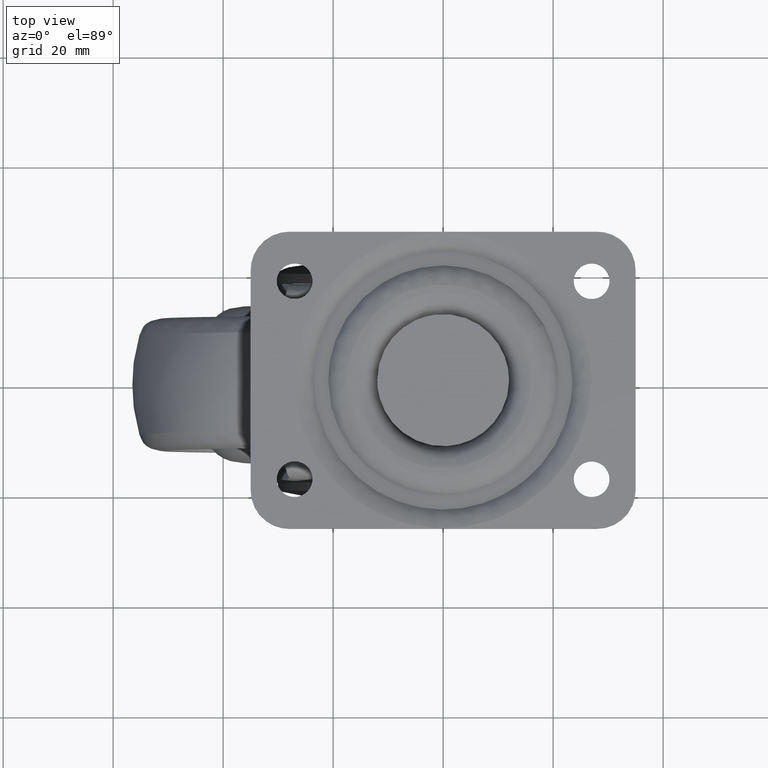
[diagram: clean part render]
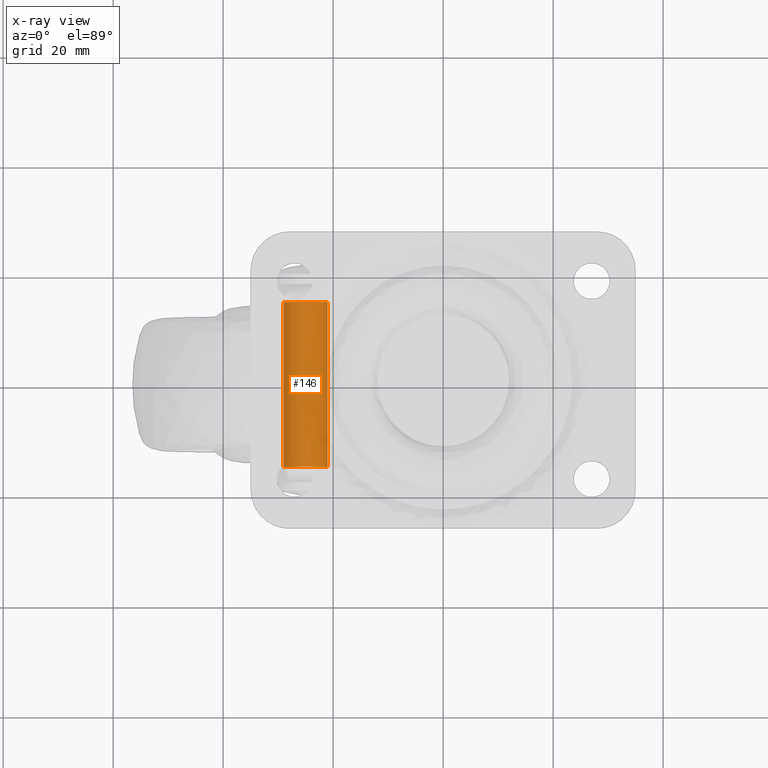
[diagram: x-ray — body ghosted, one internal face saturated and labeled with its STEP entity id]
A machine part, top view, then the same camera in x-ray: the body is ghosted and one INTERNAL B-rep face — a face not visible from any outside direction — is saturated and labeled: STEP entity #146.
In plain terms, the highlighted face is a freeform B-spline surface patch.
Its self-contained STEP definition (entity closure, byte-faithful):
#44=CARTESIAN_POINT('',(-21.027961894545335,15.750000000000005,-48.972054938627046));
#45=CARTESIAN_POINT('',(-21.014449538205575,15.750000000000007,-48.858376914551911));
#46=CARTESIAN_POINT('',(-21.007460806312530,15.750000000000000,-48.744112158139430));
#47=CARTESIAN_POINT('',(-20.763266648173104,15.750000000000009,-44.751572964451960));
#48=CARTESIAN_POINT('',(-24.755805841860571,15.750000000000000,-44.507378806312531));
#49=CARTESIAN_POINT('',(-28.748345035548041,15.750000000000009,-44.263184648173116));
#50=CARTESIAN_POINT('',(-28.992539193687470,15.750000000000000,-48.255723841860572));
#51=CARTESIAN_POINT('',(-21.027961894545335,-15.768750000000006,-48.972054938627046));
#52=CARTESIAN_POINT('',(-21.014449538205575,-15.768750000000006,-48.858376914551911));
#53=CARTESIAN_POINT('',(-21.007460806312530,-15.768750000000001,-48.744112158139430));
#54=CARTESIAN_POINT('',(-20.763266648173104,-15.768749999999997,-44.751572964451960));
#55=CARTESIAN_POINT('',(-24.755805841860571,-15.768750000000001,-44.507378806312531));
#56=CARTESIAN_POINT('',(-28.748345035548041,-15.768749999999997,-44.263184648173116));
#57=CARTESIAN_POINT('',(-28.992539193687470,-15.768750000000001,-48.255723841860572));
#65=(BOUNDED_SURFACE()B_SPLINE_SURFACE(2,1,((#44,#51),(#45,#52),(#46,#53),(#47,#54),(#48,#55),(#49,#56),(#50,#57)),.UNSPECIFIED.,.F.,.F.,.U.)B_SPLINE_SURFACE_WITH_KNOTS((3,2,2,3),(2,2),(0.0,0.265096679918781,6.892513677888307,13.519930675857831),(0.0,31.518750000000011),.UNSPECIFIED.)GEOMETRIC_REPRESENTATION_ITEM()RATIONAL_B_SPLINE_SURFACE(((0.977505800795127,0.977505800795127),(0.988284271247462,0.988284271247462),(1.0,1.0),(0.707106781186548,0.707106781186548),(1.0,1.0),(0.707106781186548,0.707106781186548),(1.0,1.0)))REPRESENTATION_ITEM('')SURFACE());
#66=CARTESIAN_POINT('',(-21.027961894573011,-15.0,-48.972054938859863));
#67=VERTEX_POINT('',#66);
#68=CARTESIAN_POINT('',(-25.0,-15.0,-44.499918000000001));
#69=VERTEX_POINT('',#68);
#70=CARTESIAN_POINT('',(-21.027961894573007,-14.999999999999995,-48.972054938859863));
#71=CARTESIAN_POINT('',(-21.0,-15.000000000000005,-48.736814478842923));
#72=CARTESIAN_POINT('',(-21.0,-15.0,-48.499918000000001));
#73=CARTESIAN_POINT('',(-21.000000000000004,-14.999999999999995,-44.499918000000001));
#74=CARTESIAN_POINT('',(-25.0,-15.0,-44.499918000000001));
#82=(BOUNDED_CURVE()B_SPLINE_CURVE(2,(#70,#71,#72,#73,#74),.UNSPECIFIED.,.F.,.U.)B_SPLINE_CURVE_WITH_KNOTS((3,2,3),(0.229562473495832,0.250000000000000,0.500000000000000),.UNSPECIFIED.)CURVE()GEOMETRIC_REPRESENTATION_ITEM()RATIONAL_B_SPLINE_CURVE((0.956026754149052,0.976055948310436,1.0,0.707106781186548,1.0))REPRESENTATION_ITEM(''));
#83=EDGE_CURVE('',#67,#69,#82,.T.);
#84=ORIENTED_EDGE('',*,*,#83,.T.);
#85=CARTESIAN_POINT('',(-28.992539193671892,-15.0,-48.255723841605871));
#86=VERTEX_POINT('',#85);
#87=CARTESIAN_POINT('',(-25.0,-15.0,-44.499918000000001));
#88=CARTESIAN_POINT('',(-28.762824267141802,-14.999999999999996,-44.499918000000001));
#89=CARTESIAN_POINT('',(-28.992539193671895,-15.0,-48.255723841605878));
#97=(BOUNDED_CURVE()B_SPLINE_CURVE(2,(#87,#88,#89),.UNSPECIFIED.,.F.,.U.)B_SPLINE_CURVE_WITH_KNOTS((3,3),(0.500000000000000,0.739332962219954),.UNSPECIFIED.)CURVE()GEOMETRIC_REPRESENTATION_ITEM()RATIONAL_B_SPLINE_CURVE((1.0,0.719603993308958,0.976072041626020))REPRESENTATION_ITEM(''));
#98=EDGE_CURVE('',#69,#86,#97,.T.);
#99=ORIENTED_EDGE('',*,*,#98,.T.);
#100=CARTESIAN_POINT('',(-28.992539193671892,15.0,-48.255723841605871));
#101=VERTEX_POINT('',#100);
#102=CARTESIAN_POINT('',(-28.992539193671892,15.0,-48.255723841605871));
#103=CARTESIAN_POINT('',(-28.992539193671892,-15.0,-48.255723841605871));
#104=QUASI_UNIFORM_CURVE('',1,(#102,#103),.UNSPECIFIED.,.F.,.U.);
#105=EDGE_CURVE('',#101,#86,#104,.T.);
#106=ORIENTED_EDGE('',*,*,#105,.F.);
#107=CARTESIAN_POINT('',(-25.0,15.0,-44.499918000000001));
#108=VERTEX_POINT('',#107);
#109=CARTESIAN_POINT('',(-25.0,15.0,-44.499918000000001));
#110=CARTESIAN_POINT('',(-28.762824267141802,14.999999999999996,-44.499918000000001));
#111=CARTESIAN_POINT('',(-28.992539193671895,15.0,-48.255723841605878));
#119=(BOUNDED_CURVE()B_SPLINE_CURVE(2,(#109,#110,#111),.UNSPECIFIED.,.F.,.U.)B_SPLINE_CURVE_WITH_KNOTS((3,3),(0.500000000000000,0.739332962219954),.UNSPECIFIED.)CURVE()GEOMETRIC_REPRESENTATION_ITEM()RATIONAL_B_SPLINE_CURVE((1.0,0.719603993308958,0.976072041626020))REPRESENTATION_ITEM(''));
#120=EDGE_CURVE('',#108,#101,#119,.T.);
#121=ORIENTED_EDGE('',*,*,#120,.F.);
#122=CARTESIAN_POINT('',(-21.027961894573011,15.0,-48.972054938859870));
#123=VERTEX_POINT('',#122);
#124=CARTESIAN_POINT('',(-21.027961894573007,15.000000000000002,-48.972054938859870));
#125=CARTESIAN_POINT('',(-20.999999999999996,15.0,-48.736814478842945));
#126=CARTESIAN_POINT('',(-21.0,15.0,-48.499918000000001));
#127=CARTESIAN_POINT('',(-21.000000000000004,14.999999999999995,-44.499918000000001));
#128=CARTESIAN_POINT('',(-25.0,15.0,-44.499918000000001));
#136=(BOUNDED_CURVE()B_SPLINE_CURVE(2,(#124,#125,#126,#127,#128),.UNSPECIFIED.,.F.,.U.)B_SPLINE_CURVE_WITH_KNOTS((3,2,3),(0.229562473495832,0.250000000000000,0.500000000000000),.UNSPECIFIED.)CURVE()GEOMETRIC_REPRESENTATION_ITEM()RATIONAL_B_SPLINE_CURVE((0.956026754149052,0.976055948310435,1.0,0.707106781186548,1.0))REPRESENTATION_ITEM(''));
#137=EDGE_CURVE('',#123,#108,#136,.T.);
#138=ORIENTED_EDGE('',*,*,#137,.F.);
#139=CARTESIAN_POINT('',(-21.027961894573011,15.0,-48.972054938859870));
#140=CARTESIAN_POINT('',(-21.027961894573011,-15.0,-48.972054938859863));
#141=QUASI_UNIFORM_CURVE('',1,(#139,#140),.UNSPECIFIED.,.F.,.U.);
#142=EDGE_CURVE('',#123,#67,#141,.T.);
#143=ORIENTED_EDGE('',*,*,#142,.T.);
#144=EDGE_LOOP('',(#84,#99,#106,#121,#138,#143));
#145=FACE_OUTER_BOUND('',#144,.T.);
#146=ADVANCED_FACE('',(#145),#65,.F.);